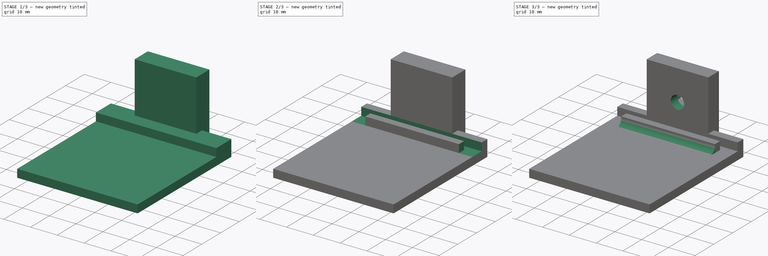
[diagram: build sequence overview — one tinted view per stage of 3, left to right]
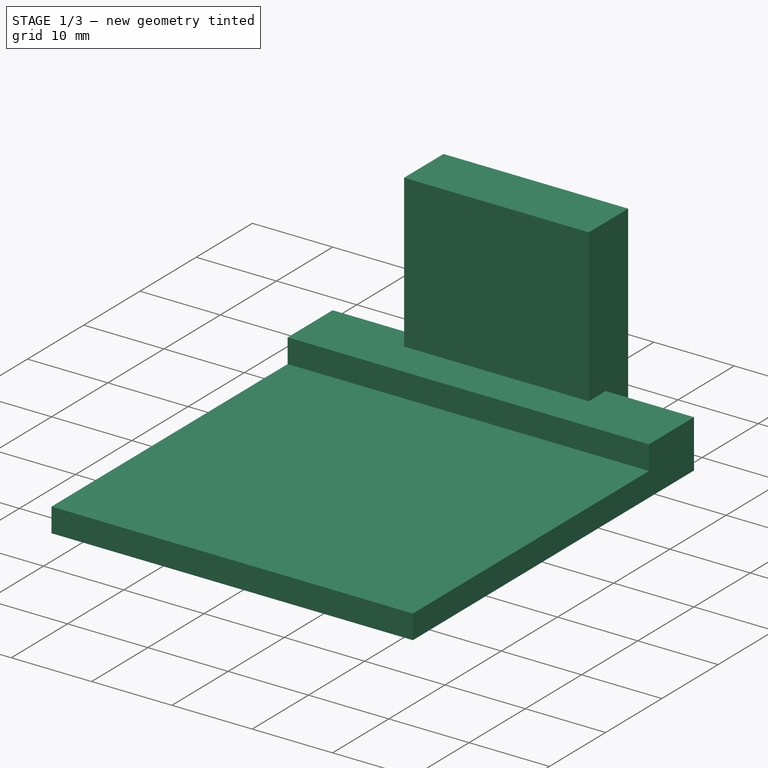
[diagram: stage 1 of 3 — iso view after this stage's code; geometry added in this stage tinted green]
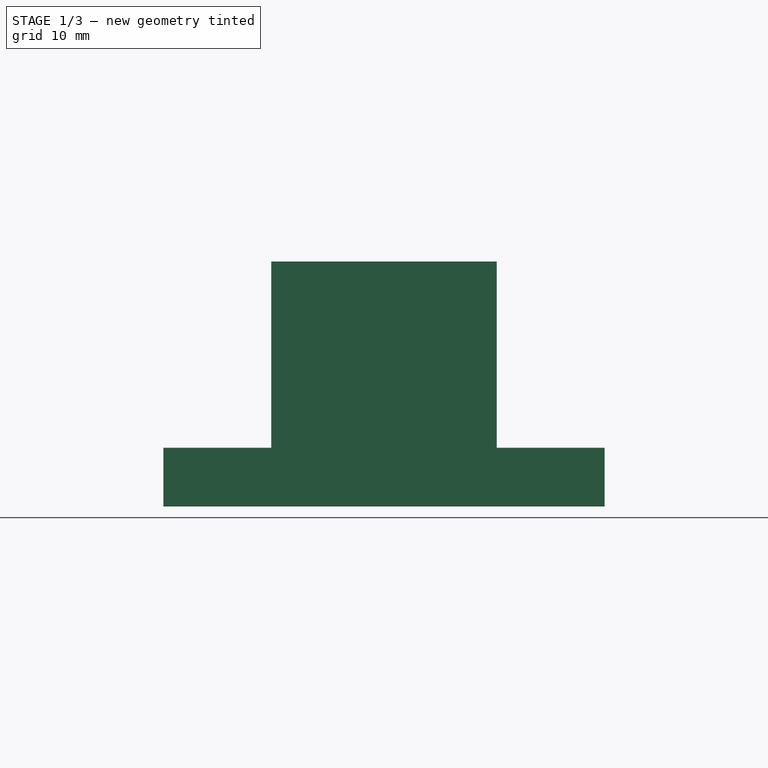
[diagram: stage 1 of 3 — front view after this stage's code; geometry added in this stage tinted green]
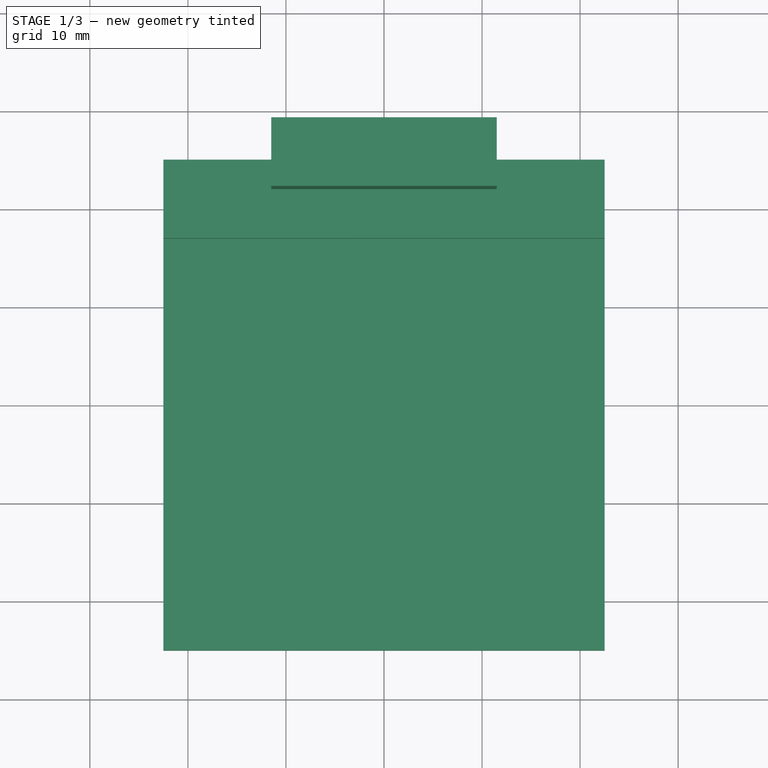
[diagram: stage 1 of 3 — top view after this stage's code; geometry added in this stage tinted green]
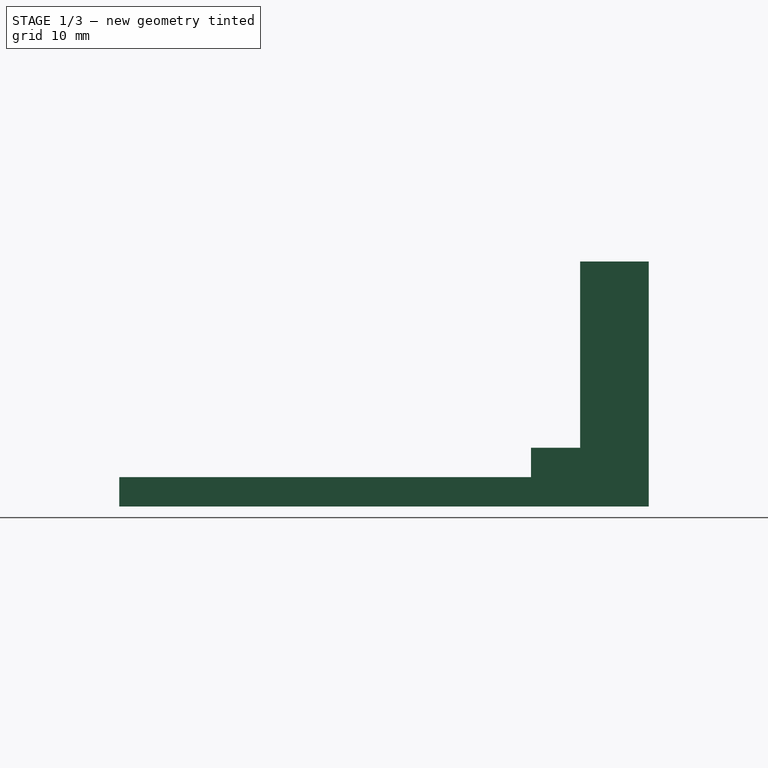
[diagram: stage 1 of 3 — right view after this stage's code; geometry added in this stage tinted green]
FCSTD DOCUMENT  (FreeCAD 0.17R13519 (Git))
Label: testBase
License: CreativeCommons Attribution-ShareAlike
LicenseURL: http://creativecommons.org/licenses/by-sa/4.0/
objects: Sketcher::SketchObject×6, PartDesign::Pad×3, PartDesign::Pocket×3, PartDesign::Fillet×2, PartDesign::Plane×1, PartDesign::Body×1
note: 22 computed .brp shape members not serialized (recipe doc carries the construction recipe); baked Part::Feature solids carry a one-line shape summary decoded from their .brp

FEATURE [Sketcher::SketchObject] Sketch
  MapMode = 5
  Support = -> [XY_Plane]
  sketch-geometry (4):
    g0: LineSegment StartX=-22.5 StartY=25 StartZ=0 EndX=22.5 EndY=25 EndZ=0
    g1: LineSegment StartX=22.5 StartY=25 StartZ=0 EndX=22.5 EndY=-25 EndZ=0
    g2: LineSegment StartX=22.5 StartY=-25 StartZ=0 EndX=-22.5 EndY=-25 EndZ=0
    g3: LineSegment StartX=-22.5 StartY=-25 StartZ=0 EndX=-22.5 EndY=25 EndZ=0
  constraints (11):
    c: Coincident(g0,g1)
    c: Coincident(g1,g2)
    c: Coincident(g2,g3)
    c: Coincident(g3,g0)
    c: Horizontal(g0)
    c: Horizontal(g2)
    c: Vertical(g1)
    c: Vertical(g3)
    c: Symmetric(g0,g1,g-1)
    c: DistanceX(g0,g0) = 45
    c: DistanceY(g1,g1) = 50
FEATURE [PartDesign::Pad] Pad
  Length = 3
  Length2 = 100
  Profile = -> Sketch
  Type = 0
FEATURE [PartDesign::Plane] DatumPlane
  AttachmentOffset = pos=(0,0,-3) rot=(0,0,1;0rad)
  MapMode = 5
  Placement = pos=(0,22,0) rot=(0,0.707107,0.707107;3.14159rad)
  Support = -> [Pad]
FEATURE [Sketcher::SketchObject] Sketch001
  MapMode = 5
  Placement = pos=(0,22,0) rot=(0,0.707107,0.707107;3.14159rad)
  Support = -> [DatumPlane]
  sketch-geometry (4):
    g0: LineSegment StartX=-11.5 StartY=25 StartZ=0 EndX=11.5 EndY=25 EndZ=0
    g1: LineSegment StartX=11.5 StartY=25 StartZ=0 EndX=11.5 EndY=0 EndZ=0
    g2: LineSegment StartX=11.5 StartY=0 StartZ=0 EndX=-11.5 EndY=0 EndZ=0
    g3: LineSegment StartX=-11.5 StartY=0 StartZ=0 EndX=-11.5 EndY=25 EndZ=0
  constraints (12):
    c: Coincident(g0,g1)
    c: Coincident(g1,g2)
    c: Coincident(g2,g3)
    c: Coincident(g3,g0)
    c: Horizontal(g0)
    c: Horizontal(g2)
    c: Vertical(g1)
    c: Vertical(g3)
    c: PointOnObject(g1,g-1)
    c: DistanceX(g0,g0) = 23
    c: DistanceY(g3,g3) = 25
    c: Symmetric(g1,g2,g-1)
FEATURE [PartDesign::Pad] Pad001
  BaseFeature = -> Pad
  Length = 7
  Length2 = 100
  Profile = -> Sketch001
  Type = 0
FEATURE [Sketcher::SketchObject] Sketch002
  ExternalGeometry = -> [Pad001]
  MapMode = 5
  Placement = pos=(0,0,3) rot=(0,0,1;0rad)
  Support = -> [Pad001]
  sketch-geometry (4):
    g0: LineSegment StartX=-22.5 StartY=25 StartZ=0 EndX=22.5 EndY=25 EndZ=0
    g1: LineSegment StartX=22.5 StartY=25 StartZ=0 EndX=22.5 EndY=17 EndZ=0
    g2: LineSegment StartX=22.5 StartY=17 StartZ=0 EndX=-22.5 EndY=17 EndZ=0
    g3: LineSegment StartX=-22.5 StartY=17 StartZ=0 EndX=-22.5 EndY=25 EndZ=0
  constraints (11):
    c: Coincident(g0,g1)
    c: Coincident(g1,g2)
    c: Coincident(g2,g3)
    c: Coincident(g3,g0)
    c: Horizontal(g0)
    c: Horizontal(g2)
    c: Vertical(g1)
    c: Vertical(g3)
    c: Coincident(g0,g-3)
    c: PointOnObject(g1,g-5)
    c: DistanceY(g1,g1) = 8
FEATURE [PartDesign::Pad] Pad002
  BaseFeature = -> Pad001
  Length = 3
  Length2 = 100
  Profile = -> Sketch002
  Type = 0
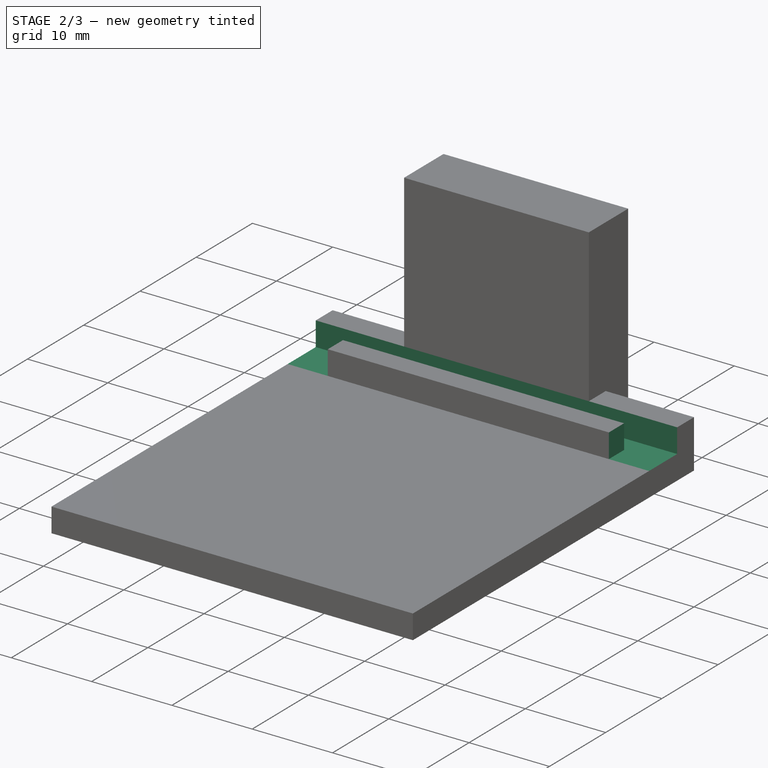
[diagram: stage 2 of 3 — iso view after this stage's code; geometry added in this stage tinted green]
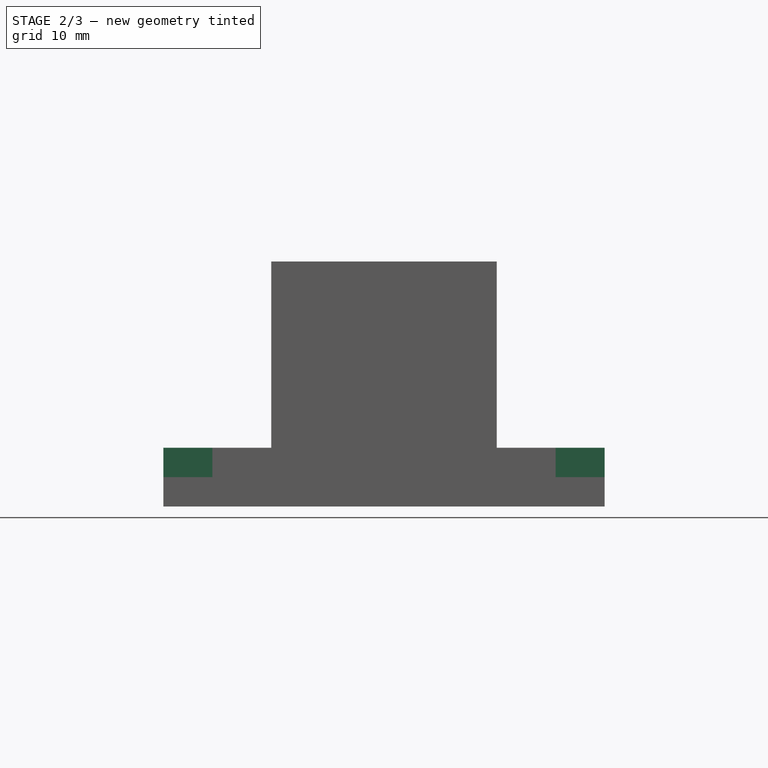
[diagram: stage 2 of 3 — front view after this stage's code; geometry added in this stage tinted green]
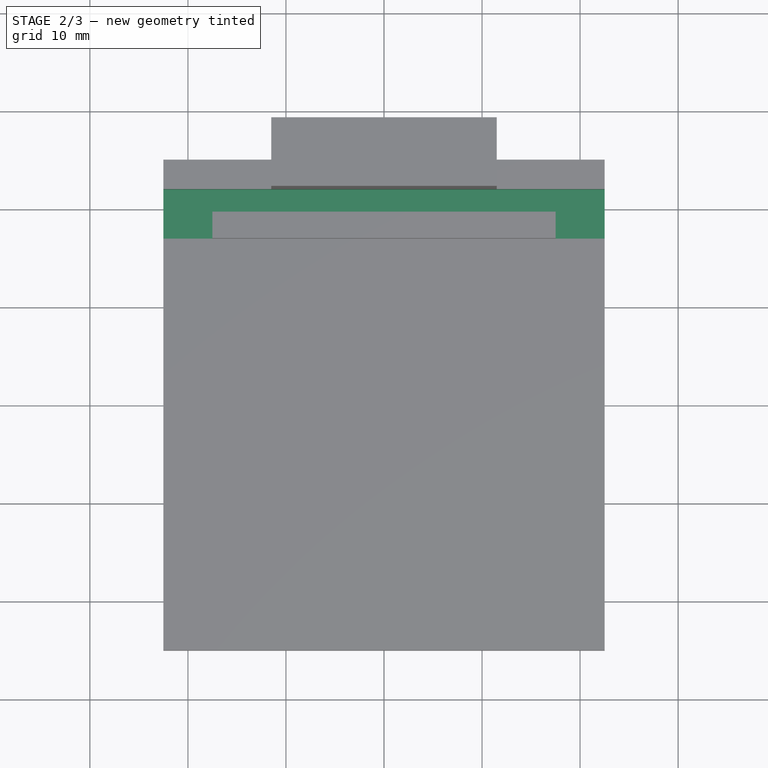
[diagram: stage 2 of 3 — top view after this stage's code; geometry added in this stage tinted green]
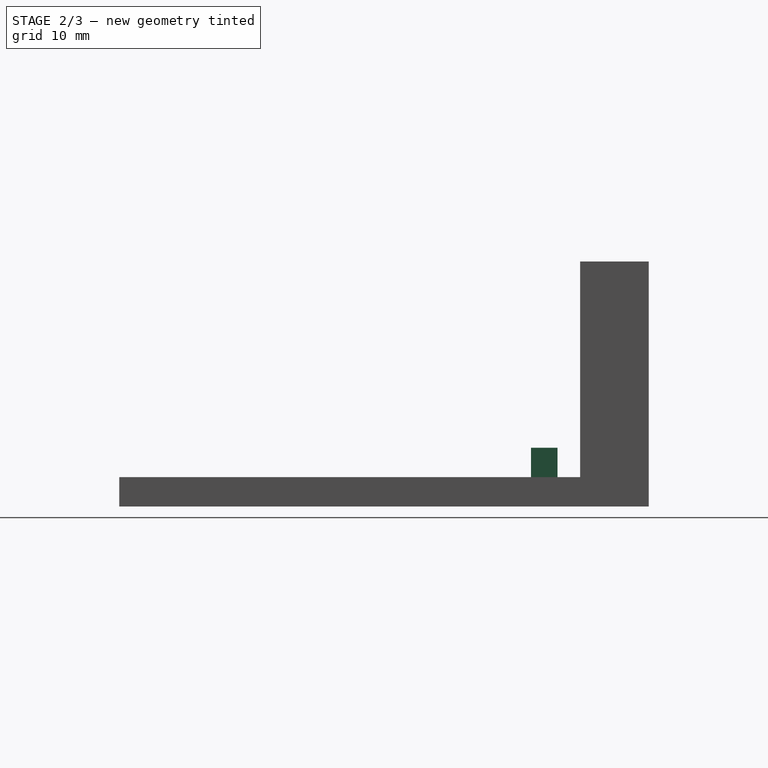
[diagram: stage 2 of 3 — right view after this stage's code; geometry added in this stage tinted green]
FEATURE [Sketcher::SketchObject] Sketch003
  ExternalGeometry = -> [Pad002]
  MapMode = 5
  Placement = pos=(0,0,6) rot=(0,0,1;0rad)
  Support = -> [Pad002]
  sketch-geometry (10):
    g0: LineSegment StartX=-22.5 StartY=22 StartZ=0 EndX=22.5 EndY=22 EndZ=0
    g1: LineSegment StartX=22.5 StartY=22 StartZ=0 EndX=22.5 EndY=19.7 EndZ=0
    g2: LineSegment StartX=17.5 StartY=19.7 StartZ=0 EndX=-17.5 EndY=19.7 EndZ=0
    g3: LineSegment StartX=-22.5 StartY=19.7 StartZ=0 EndX=-22.5 EndY=22 EndZ=0
    g4: LineSegment StartX=-17.5 StartY=19.7 StartZ=0 EndX=-17.5 EndY=17 EndZ=0
    g5: LineSegment StartX=-17.5 StartY=17 StartZ=0 EndX=-22.5 EndY=17 EndZ=0
    g6: LineSegment StartX=-22.5 StartY=17 StartZ=0 EndX=-22.5 EndY=19.7 EndZ=0
    g7: LineSegment StartX=17.5 StartY=19.7 StartZ=0 EndX=17.5 EndY=17 EndZ=0
    g8: LineSegment StartX=17.5 StartY=17 StartZ=0 EndX=22.5 EndY=17 EndZ=0
    g9: LineSegment StartX=22.5 StartY=17 StartZ=0 EndX=22.5 EndY=19.7 EndZ=0
  constraints (30):
    c: Coincident(g0,g1)
    c: Coincident(g3,g0)
    c: Horizontal(g0)
    c: Horizontal(g2)
    c: Vertical(g1)
    c: Vertical(g3)
    c: PointOnObject(g0,g-3)
    c: PointOnObject(g1,g-4)
    c: PointOnObject(g-5,g0)
    c: DistanceY(g1,g1) = 2.3
    c: Coincident(g4,g5)
    c: Coincident(g5,g6)
    c: Horizontal(g5)
    c: Vertical(g4)
    c: Vertical(g6)
    c: Coincident(g7,g8)
    c: Coincident(g8,g9)
    c: Horizontal(g8)
    c: Vertical(g7)
    c: Vertical(g9)
    c: Coincident(g8,g-4)
    c: Coincident(g5,g-3)
    c: Equal(g5,g8)
    c: DistanceX(g5,g5) = 5
    c: PointOnObject(g2,g4)
    c: PointOnObject(g2,g7)
    c: Equal(g4,g7)
    c: DistanceY(g4,g4) = 2.7
    c: Coincident(g9,g1)
    c: Coincident(g6,g3)
FEATURE [PartDesign::Pocket] Pocket
  BaseFeature = -> Pad002
  Length = 3
  Length2 = 100
  Profile = -> Sketch003
  Type = 0
FEATURE [Sketcher::SketchObject] Sketch004
  MapMode = 5
  Placement = pos=(0,29,0) rot=(0,0.707107,0.707107;3.14159rad)
  Support = -> [Pocket]
  sketch-geometry (11):
    g0: LineSegment [constr] StartX=-9.74365 StartY=24 StartZ=0 EndX=9.74365 EndY=24 EndZ=0
    g1: LineSegment [constr] StartX=9.74365 StartY=24 StartZ=0 EndX=9.74365 EndY=3 EndZ=0
    g2: LineSegment [constr] StartX=9.74365 StartY=3 StartZ=0 EndX=-9.74365 EndY=3 EndZ=0
    g3: LineSegment [constr] StartX=-9.74365 StartY=3 StartZ=0 EndX=-9.74365 EndY=24 EndZ=0
    g4: LineSegment StartX=3.65 StartY=11.3927 StartZ=0 EndX=3.65 EndY=15.6073 EndZ=0
    g5: LineSegment StartX=3.65 StartY=15.6073 StartZ=0 EndX=0 EndY=17.7147 EndZ=0
    g6: LineSegment StartX=0 StartY=17.7147 StartZ=0 EndX=-3.65 EndY=15.6073 EndZ=0
    g7: LineSegment StartX=-3.65 StartY=15.6073 StartZ=0 EndX=-3.65 EndY=11.3927 EndZ=0
    g8: LineSegment StartX=-3.65 StartY=11.3927 StartZ=0 EndX=0 EndY=9.28534 EndZ=0
    g9: LineSegment StartX=0 StartY=9.28534 StartZ=0 EndX=3.65 EndY=11.3927 EndZ=0
    g10: Circle [constr] CenterX=0 CenterY=13.5 CenterZ=0 NormalX=0 NormalY=0 NormalZ=1 AngleXU=0 Radius=4.21466
  constraints (28):
    c: Coincident(g0,g1)
    c: Coincident(g1,g2)
    c: Coincident(g2,g3)
    c: Coincident(g3,g0)
    c: Horizontal(g0)
    c: Horizontal(g2)
    c: Vertical(g1)
    c: Vertical(g3)
    c: Symmetric(g2,g1,g-2)
    c: DistanceY(g3,g3) = 21
    c: DistanceY(g-1,g1) = 3
    c: Coincident(g4,g5)
    c: Coincident(g5,g6)
    c: Coincident(g6,g7)
    c: Coincident(g7,g8)
    c: Coincident(g8,g9)
    c: Coincident(g9,g4)
    c: Equal(g4, g5-g9) x5
    c: PointOnObject(g4,g10)
    c: PointOnObject(g5,g10)
    c: PointOnObject(g6,g10)
    c: PointOnObject(g7,g10)
    c: PointOnObject(g8,g10)
    c: PointOnObject(g9,g10)
    c: PointOnObject(g10,g-2)
    c: PointOnObject(g5,g-2)
    c: DistanceX(g6,g4) = 7.3
    c: DistanceY(g1,g10) = 10.5
FEATURE [PartDesign::Pocket] Pocket001
  BaseFeature = -> Pocket
  Length = 3.5
  Length2 = 100
  Profile = -> Sketch004
  Type = 0
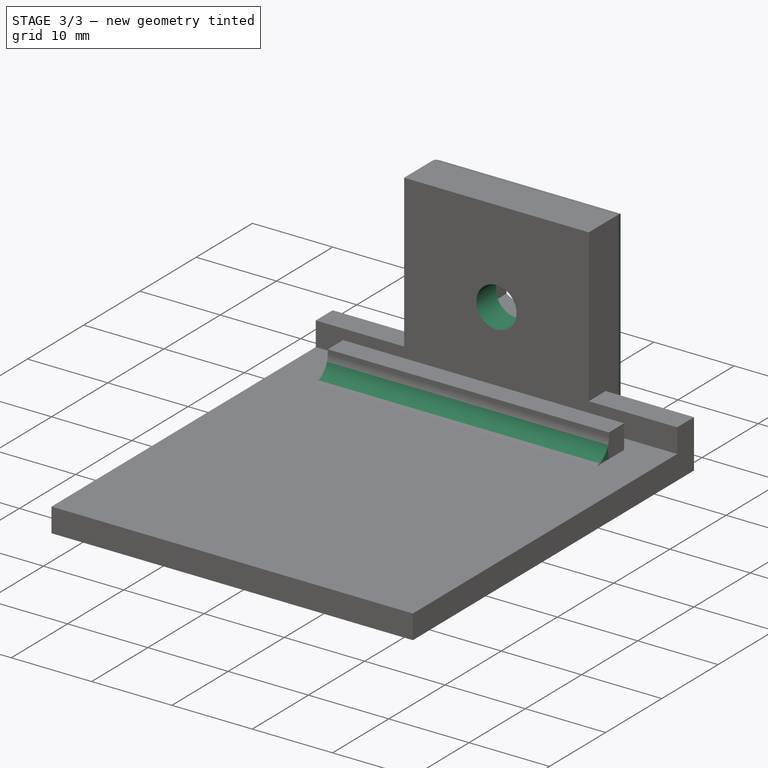
[diagram: stage 3 of 3 — iso view after this stage's code; geometry added in this stage tinted green]
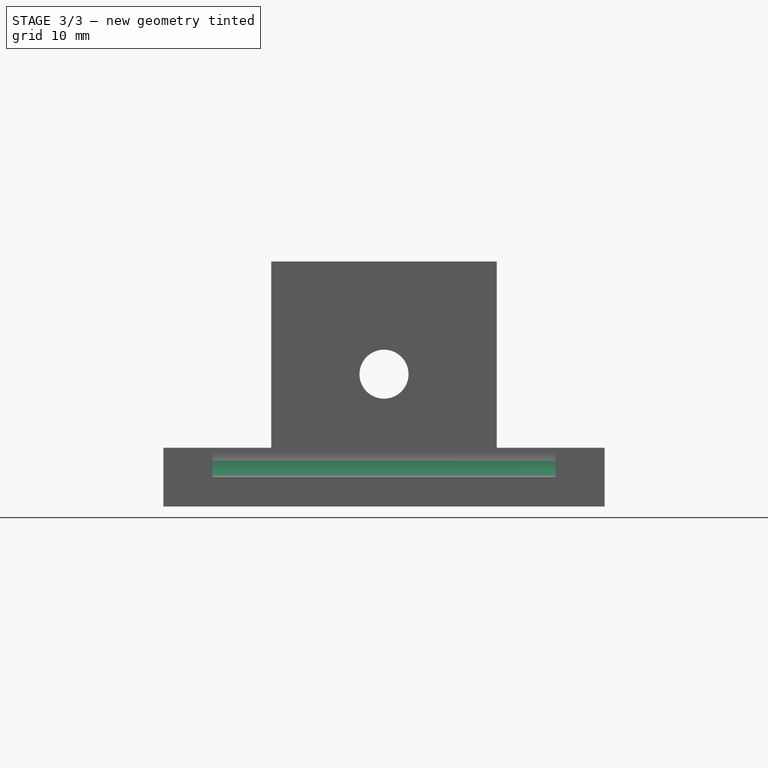
[diagram: stage 3 of 3 — front view after this stage's code; geometry added in this stage tinted green]
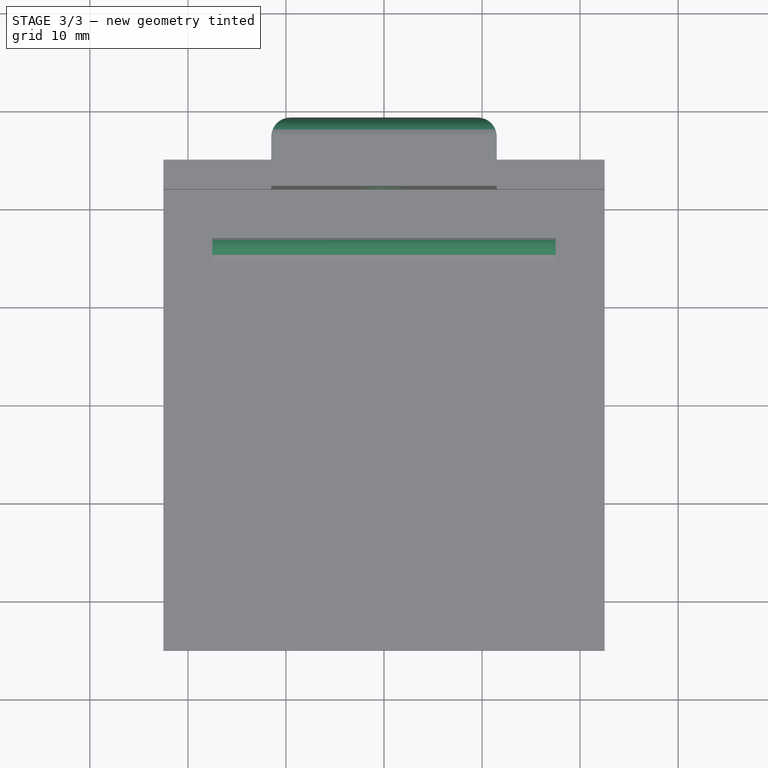
[diagram: stage 3 of 3 — top view after this stage's code; geometry added in this stage tinted green]
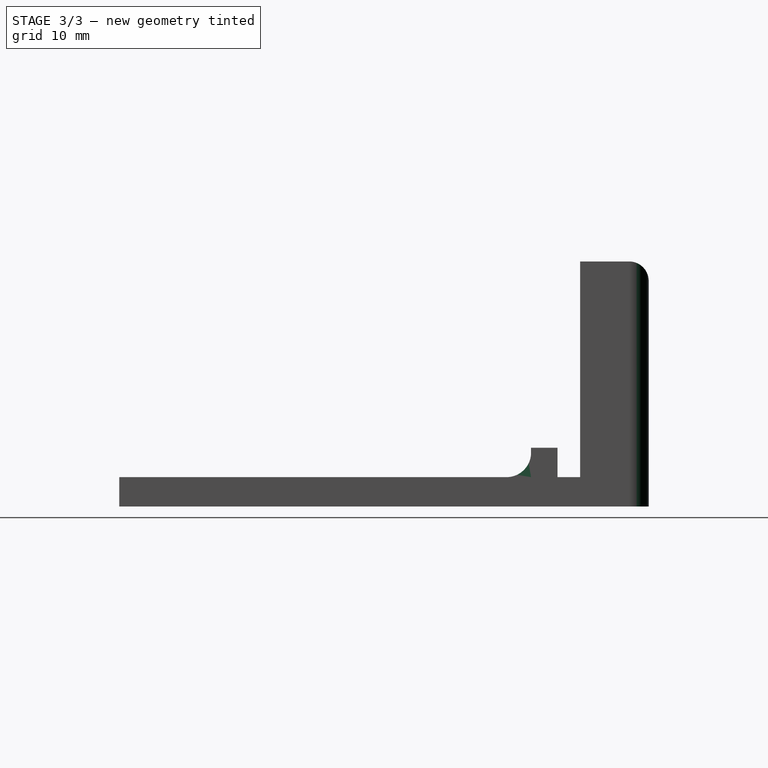
[diagram: stage 3 of 3 — right view after this stage's code; geometry added in this stage tinted green]
FEATURE [Sketcher::SketchObject] Sketch005
  ExternalGeometry = -> [Pocket001]
  MapMode = 5
  Placement = pos=(0,25.5,0) rot=(0,0.707107,0.707107;3.14159rad)
  Support = -> [Pocket001]
  sketch-geometry (1):
    g0: Circle CenterX=0 CenterY=13.5 CenterZ=0 NormalX=0 NormalY=0 NormalZ=1 AngleXU=0 Radius=2.5
  constraints (3):
    c: PointOnObject(g0,g-2)
    c: Radius(g0) = 2.5
    c: DistanceY(g-3,g0) = 13.5
FEATURE [PartDesign::Pocket] Pocket002
  BaseFeature = -> Pocket001
  Length = 5
  Length2 = 100
  Profile = -> Sketch005
  Type = 1
FEATURE [PartDesign::Fillet] Fillet
  Base = -> Pocket002 [Edge24]
  BaseFeature = -> Pocket002
  Radius = 2.5
FEATURE [PartDesign::Fillet] Fillet001
  Base = -> Fillet [Edge72,Edge65,Edge70]
  BaseFeature = -> Fillet
  Radius = 2
FEATURE [PartDesign::Body] Body
  Group = -> [Sketch,Pad,DatumPlane,Sketch001,Pad001,Sketch002,Pad002,Sketch003,Pocket,Sketch004,Pocket001,Sketch005,Pocket002,Fillet,Fillet001]
  Origin = -> Origin
  Tip = -> Fillet001
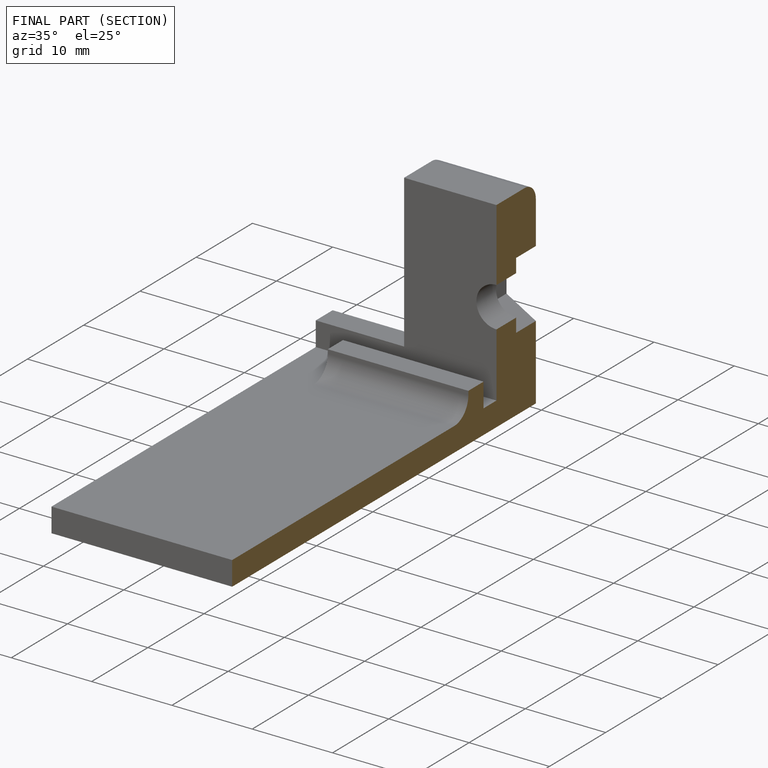
[diagram: finished part — half-section view (interior)]
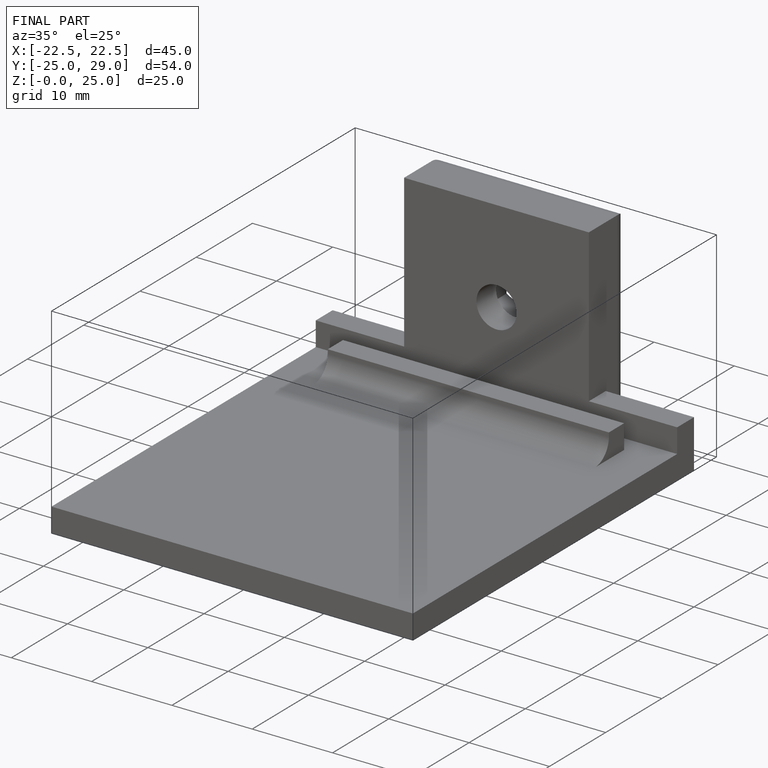
[diagram: finished part — iso view with bounding-box wireframe]
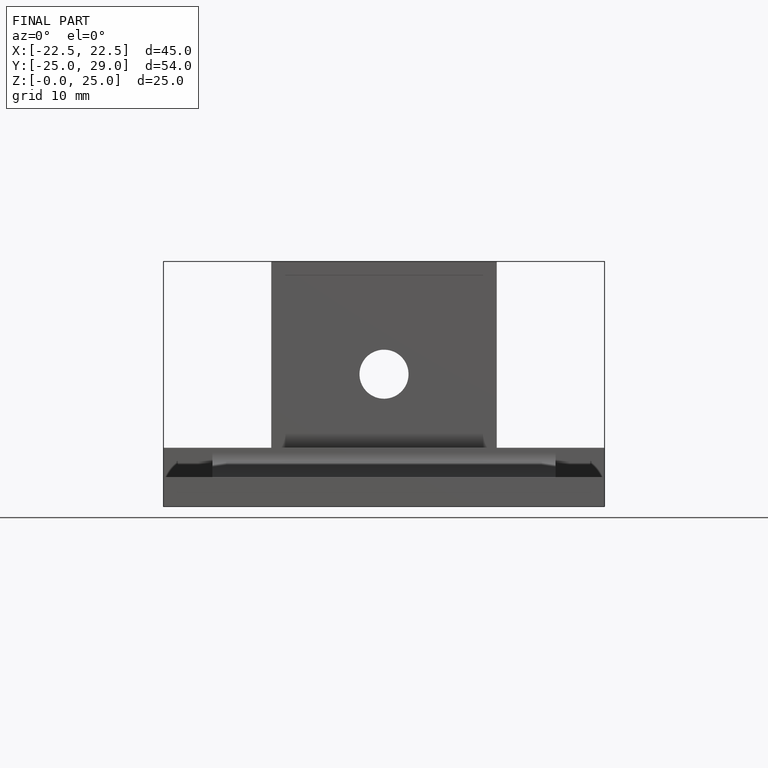
[diagram: finished part — front view with bounding-box wireframe]
